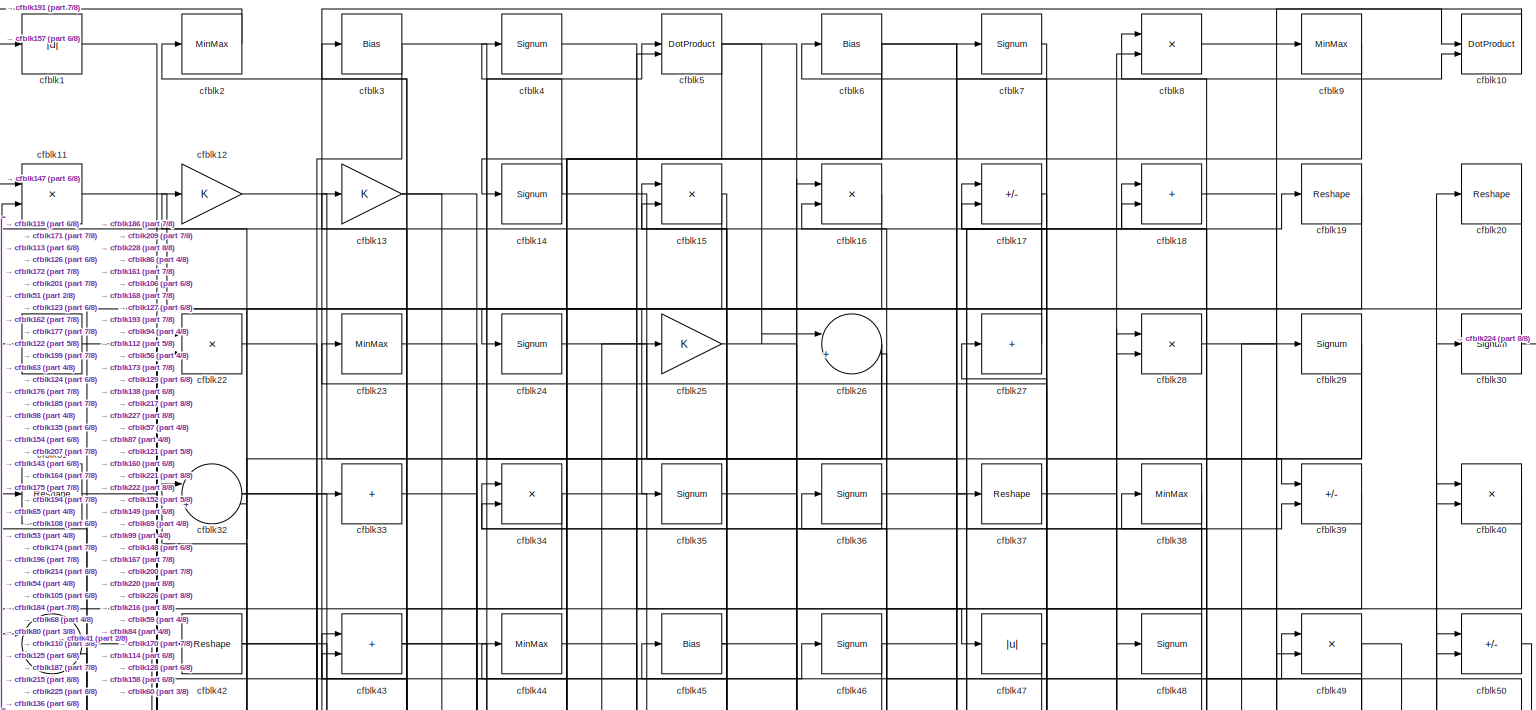
[diagram: root canvas - part 1/8, full width, top band]
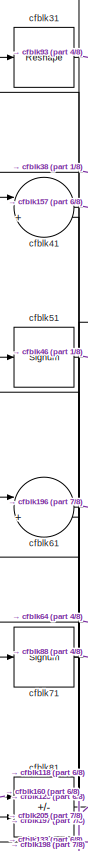
[diagram: root canvas - part 2/8, top left region]
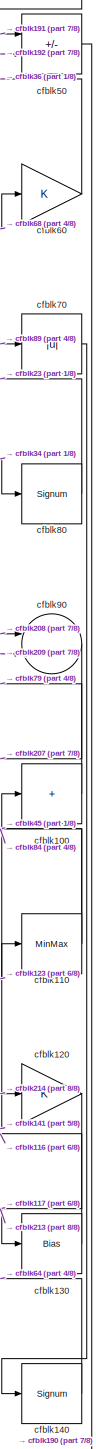
[diagram: root canvas - part 3/8, middle right region]
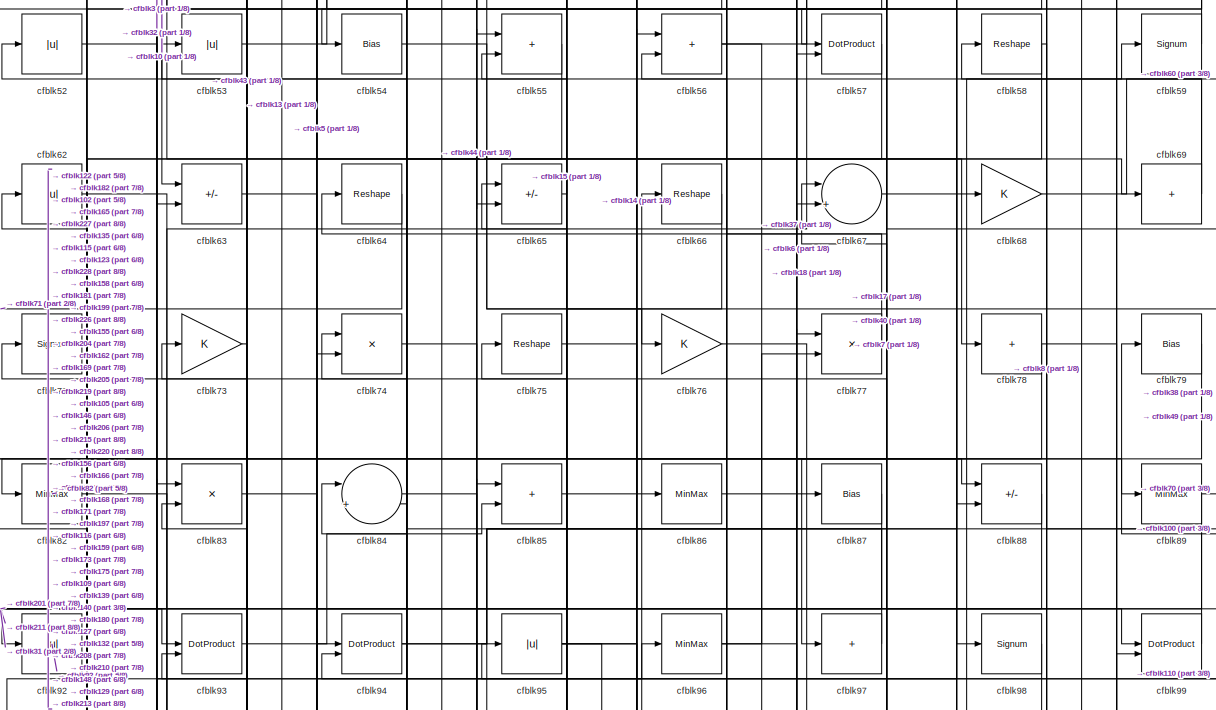
[diagram: root canvas - part 4/8, full width, top band]
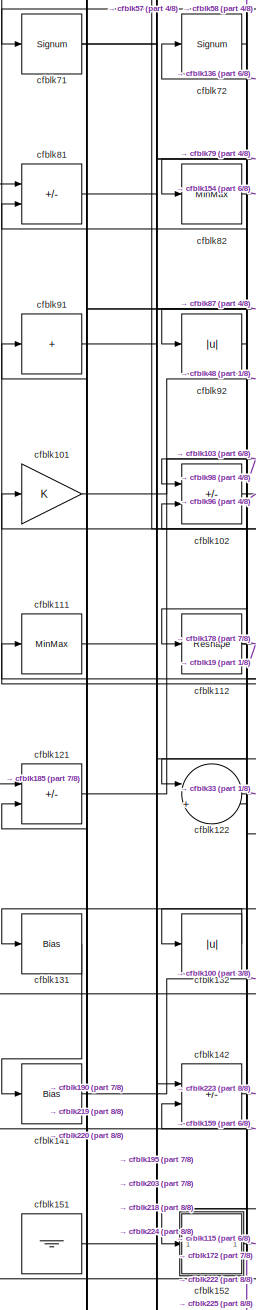
[diagram: root canvas - part 5/8, middle left region]
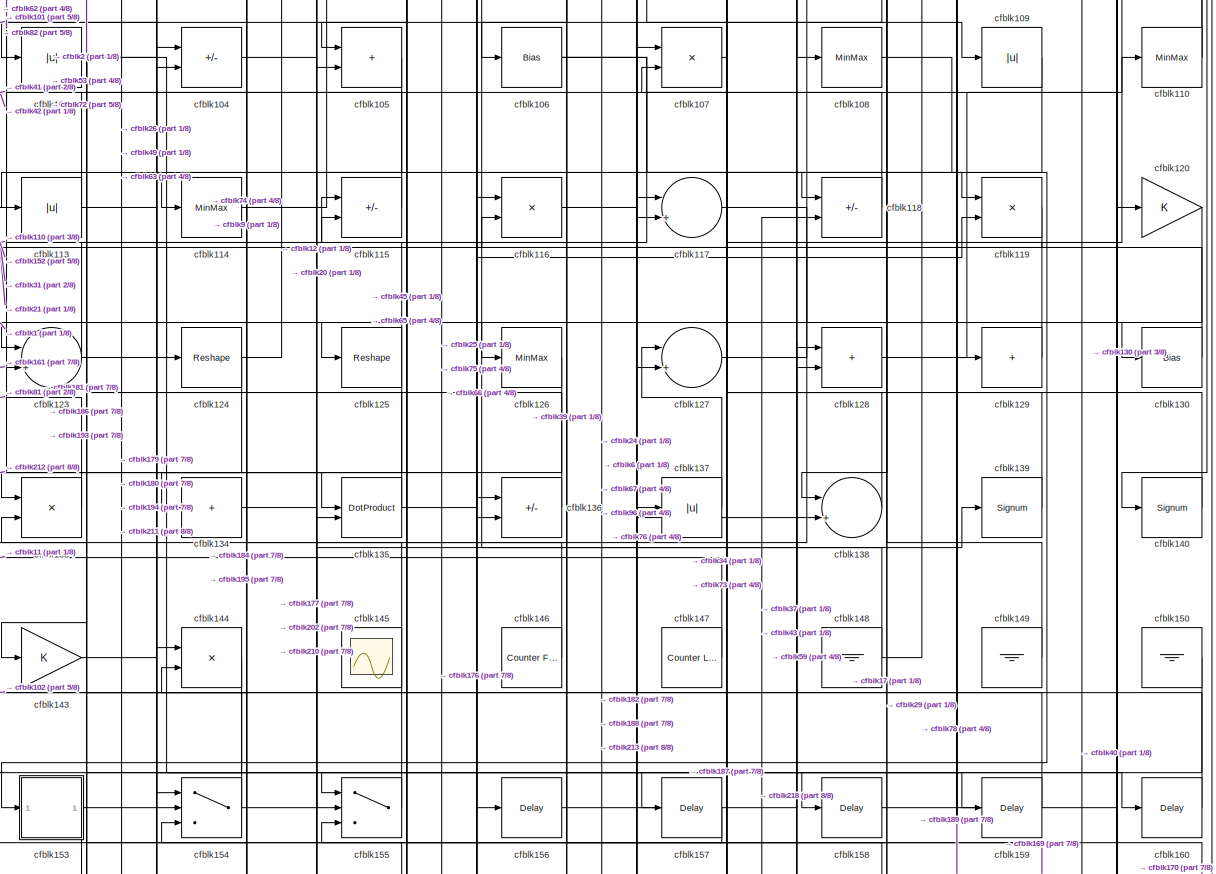
[diagram: root canvas - part 6/8, full width, middle band]
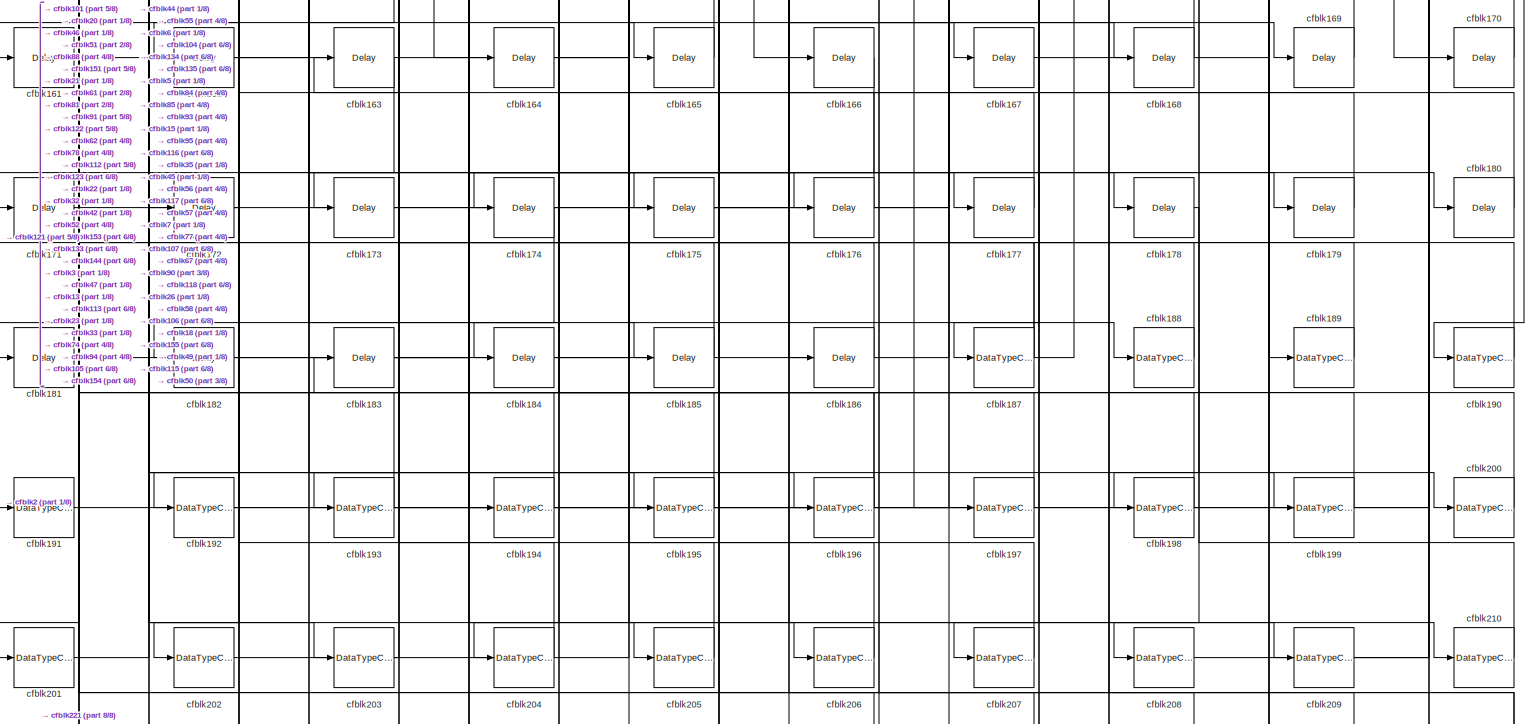
[diagram: root canvas - part 7/8, full width, bottom band]
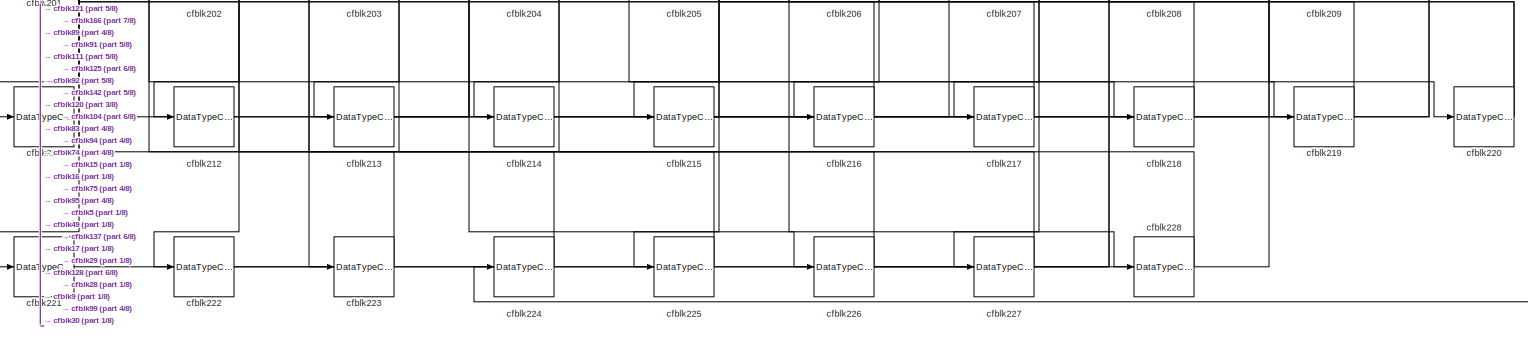
[diagram: root canvas - part 8/8, full width, bottom band]
MODEL slx_5a5e3901d874
KIND model
CONFIG AbsTol = auto
CONFIG EnableMultiTasking = off
CONFIG FixedStep = auto
CONFIG MaxStep = auto
CONFIG MinStep = auto
CONFIG RelTol = 1e-3
CONFIG SampleTimeConstraint = Unconstrained
CONFIG SolverName = VariableStepAuto
CONFIG StartTime = 0.0
CONFIG StopTime = 10.0
BLOCK [Abs] cfblk1
  SaturateOnIntegerOverflow = off
BLOCK [DotProduct] cfblk10
  OutDataTypeStr = Inherit: Inherit via internal rule
BLOCK [Sum] cfblk100
  IconShape = rectangular
  Inputs = +
BLOCK [Gain] cfblk101
BLOCK [Sum] cfblk102
  IconShape = rectangular
  Inputs = +-
BLOCK [Abs] cfblk103
  SaturateOnIntegerOverflow = off
BLOCK [Sum] cfblk104
  IconShape = rectangular
  Inputs = +-
BLOCK [Sum] cfblk105
  IconShape = rectangular
BLOCK [Bias] cfblk106
  Bias = 0.0
  SaturateOnIntegerOverflow = off
BLOCK [Product] cfblk107
  Inputs = */
  RndMeth = Zero
  SaturateOnIntegerOverflow = on
BLOCK [MinMax] cfblk108
BLOCK [Abs] cfblk109
  SaturateOnIntegerOverflow = off
BLOCK [Product] cfblk11
  Inputs = */
  RndMeth = Zero
  SaturateOnIntegerOverflow = on
BLOCK [MinMax] cfblk110
BLOCK [MinMax] cfblk111
BLOCK [Reshape] cfblk112
BLOCK [Abs] cfblk113
  SaturateOnIntegerOverflow = off
BLOCK [MinMax] cfblk114
BLOCK [Sum] cfblk115
  IconShape = rectangular
  Inputs = +-
BLOCK [Product] cfblk116
  Inputs = */
  RndMeth = Zero
  SaturateOnIntegerOverflow = on
BLOCK [Sum] cfblk117
  Inputs = |++
BLOCK [Sum] cfblk118
  IconShape = rectangular
  Inputs = +-
BLOCK [Product] cfblk119
  Inputs = */
  RndMeth = Zero
  SaturateOnIntegerOverflow = on
BLOCK [Gain] cfblk12
BLOCK [Gain] cfblk120
BLOCK [Sum] cfblk121
  IconShape = rectangular
  Inputs = +-
BLOCK [Sum] cfblk122
  Inputs = |++
BLOCK [Sum] cfblk123
  Inputs = |++
BLOCK [Reshape] cfblk124
BLOCK [Reshape] cfblk125
BLOCK [MinMax] cfblk126
BLOCK [Sum] cfblk127
  Inputs = |++
BLOCK [Sum] cfblk128
  IconShape = rectangular
BLOCK [Sum] cfblk129
  IconShape = rectangular
  Inputs = +
BLOCK [Gain] cfblk13
BLOCK [Bias] cfblk130
  Bias = 0.0
  SaturateOnIntegerOverflow = off
BLOCK [Bias] cfblk131
  Bias = 0.0
  SaturateOnIntegerOverflow = off
BLOCK [Abs] cfblk132
  SaturateOnIntegerOverflow = off
BLOCK [Product] cfblk133
  Inputs = */
  RndMeth = Zero
  SaturateOnIntegerOverflow = on
BLOCK [Sum] cfblk134
  IconShape = rectangular
  Inputs = +
BLOCK [DotProduct] cfblk135
  OutDataTypeStr = Inherit: Inherit via internal rule
BLOCK [Sum] cfblk136
  IconShape = rectangular
  Inputs = +-
BLOCK [Abs] cfblk137
  SaturateOnIntegerOverflow = off
BLOCK [Sum] cfblk138
  Inputs = |++
BLOCK [Signum] cfblk139
BLOCK [Signum] cfblk14
BLOCK [Signum] cfblk140
BLOCK [Bias] cfblk141
  Bias = 0.0
  SaturateOnIntegerOverflow = off
BLOCK [Sum] cfblk142
  IconShape = rectangular
  Inputs = +-
BLOCK [Gain] cfblk143
BLOCK [Product] cfblk144
  Inputs = */
  RndMeth = Zero
  SaturateOnIntegerOverflow = on
BLOCK [Scope] cfblk145
  Floating = on
  NumInputPorts = 1
  ScopeSpecificationString = Simulink.scopes.TimeScopeBlockCfg('CurrentConfiguration', extmgr.ConfigurationSet(extmgr.Configuration('Core','General UI',true,'FigureColor',[0.156862745098039 0.156862745098039 0.156862745098039]),extmgr.Configuration('Core','Source UI',true),extmgr.Configuration('Sources','WiredSimulink',true,'DataLoggingVariableName','ScopeData1','DataLoggingSaveFormat','StructureWithTime','DataLoggingLimitDat...<+2713ch>
BLOCK [Reference] cfblk146  REF=hdlsllib/Sources/Counter
Free-Running
  SourceBlock = hdlsllib/Sources/Counter\nFree-Running
  SourceType = Counter Free-Running
BLOCK [Reference] cfblk147  REF=hdlsllib/Sources/Counter
Limited
  SourceBlock = hdlsllib/Sources/Counter\nLimited
  SourceType = Counter Limited
BLOCK [Ground] cfblk148
BLOCK [Ground] cfblk149
BLOCK [Product] cfblk15
  Inputs = */
  RndMeth = Zero
  SaturateOnIntegerOverflow = on
BLOCK [Ground] cfblk150
BLOCK [Ground] cfblk151
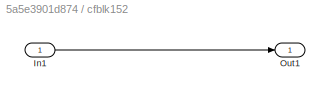
BLOCK [SubSystem] cfblk152
  LibrarySourceBlock = hdlsllib/Ports &\nSubsystems/Subsystem
BLOCK [Inport] cfblk152/In1
BLOCK [Outport] cfblk152/Out1
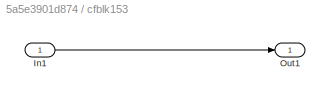
BLOCK [SubSystem] cfblk153
  LibrarySourceBlock = hdlsllib/Ports &\nSubsystems/Subsystem
BLOCK [Inport] cfblk153/In1
BLOCK [Outport] cfblk153/Out1
BLOCK [Switch] cfblk154
  InputSameDT = off
  SaturateOnIntegerOverflow = off
BLOCK [Switch] cfblk155
  InputSameDT = off
  SaturateOnIntegerOverflow = off
BLOCK [Delay] cfblk156
  InputPortMap = u0
  SampleTime = 1
BLOCK [Delay] cfblk157
  InputPortMap = u0
  SampleTime = 1
BLOCK [Delay] cfblk158
  InputPortMap = u0
  SampleTime = 1
BLOCK [Delay] cfblk159
  InputPortMap = u0
  SampleTime = 1
BLOCK [Product] cfblk16
  Inputs = */
  RndMeth = Zero
  SaturateOnIntegerOverflow = on
BLOCK [Delay] cfblk160
  InputPortMap = u0
  SampleTime = 1
BLOCK [Delay] cfblk161
  InputPortMap = u0
  SampleTime = 1
BLOCK [Delay] cfblk162
  InputPortMap = u0
  SampleTime = 1
BLOCK [Delay] cfblk163
  InputPortMap = u0
  SampleTime = 1
BLOCK [Delay] cfblk164
  InputPortMap = u0
  SampleTime = 1
BLOCK [Delay] cfblk165
  InputPortMap = u0
  SampleTime = 1
BLOCK [Delay] cfblk166
  InputPortMap = u0
  SampleTime = 1
BLOCK [Delay] cfblk167
  InputPortMap = u0
  SampleTime = 1
BLOCK [Delay] cfblk168
  InputPortMap = u0
  SampleTime = 1
BLOCK [Delay] cfblk169
  InputPortMap = u0
  SampleTime = 1
BLOCK [Sum] cfblk17
  IconShape = rectangular
  Inputs = +-
BLOCK [Delay] cfblk170
  InputPortMap = u0
  SampleTime = 1
BLOCK [Delay] cfblk171
  InputPortMap = u0
  SampleTime = 1
BLOCK [Delay] cfblk172
  InputPortMap = u0
  SampleTime = 1
BLOCK [Delay] cfblk173
  InputPortMap = u0
  SampleTime = 1
BLOCK [Delay] cfblk174
  InputPortMap = u0
  SampleTime = 1
BLOCK [Delay] cfblk175
  InputPortMap = u0
  SampleTime = 1
BLOCK [Delay] cfblk176
  InputPortMap = u0
  SampleTime = 1
BLOCK [Delay] cfblk177
  InputPortMap = u0
  SampleTime = 1
BLOCK [Delay] cfblk178
  InputPortMap = u0
  SampleTime = 1
BLOCK [Delay] cfblk179
  InputPortMap = u0
  SampleTime = 1
BLOCK [Sum] cfblk18
  IconShape = rectangular
BLOCK [Delay] cfblk180
  InputPortMap = u0
  SampleTime = 1
BLOCK [Delay] cfblk181
  InputPortMap = u0
  SampleTime = 1
BLOCK [Delay] cfblk182
  InputPortMap = u0
  SampleTime = 1
BLOCK [Delay] cfblk183
  InputPortMap = u0
  SampleTime = 1
BLOCK [Delay] cfblk184
  InputPortMap = u0
  SampleTime = 1
BLOCK [Delay] cfblk185
  InputPortMap = u0
  SampleTime = 1
BLOCK [Delay] cfblk186
  InputPortMap = u0
  SampleTime = 1
BLOCK [DataTypeConversion] cfblk187
  RndMeth = Floor
  SaturateOnIntegerOverflow = off
BLOCK [DataTypeConversion] cfblk188
  OutDataTypeStr = uint8
  RndMeth = Floor
  SaturateOnIntegerOverflow = off
BLOCK [DataTypeConversion] cfblk189
  OutDataTypeStr = uint8
  RndMeth = Floor
  SaturateOnIntegerOverflow = off
BLOCK [Reshape] cfblk19
BLOCK [DataTypeConversion] cfblk190
  OutDataTypeStr = uint8
  RndMeth = Floor
  SaturateOnIntegerOverflow = off
BLOCK [DataTypeConversion] cfblk191
  OutDataTypeStr = uint8
  RndMeth = Floor
  SaturateOnIntegerOverflow = off
BLOCK [DataTypeConversion] cfblk192
  OutDataTypeStr = uint8
  RndMeth = Floor
  SaturateOnIntegerOverflow = off
BLOCK [DataTypeConversion] cfblk193
  RndMeth = Floor
  SaturateOnIntegerOverflow = off
BLOCK [DataTypeConversion] cfblk194
  OutDataTypeStr = uint8
  RndMeth = Floor
  SaturateOnIntegerOverflow = off
BLOCK [DataTypeConversion] cfblk195
  OutDataTypeStr = uint8
  RndMeth = Floor
  SaturateOnIntegerOverflow = off
BLOCK [DataTypeConversion] cfblk196
  RndMeth = Floor
  SaturateOnIntegerOverflow = off
BLOCK [DataTypeConversion] cfblk197
  OutDataTypeStr = uint8
  RndMeth = Floor
  SaturateOnIntegerOverflow = off
BLOCK [DataTypeConversion] cfblk198
  OutDataTypeStr = uint8
  RndMeth = Floor
  SaturateOnIntegerOverflow = off
BLOCK [DataTypeConversion] cfblk199
  OutDataTypeStr = uint8
  RndMeth = Floor
  SaturateOnIntegerOverflow = off
BLOCK [MinMax] cfblk2
BLOCK [Reshape] cfblk20
BLOCK [DataTypeConversion] cfblk200
  OutDataTypeStr = uint8
  RndMeth = Floor
  SaturateOnIntegerOverflow = off
BLOCK [DataTypeConversion] cfblk201
  OutDataTypeStr = uint8
  RndMeth = Floor
  SaturateOnIntegerOverflow = off
BLOCK [DataTypeConversion] cfblk202
  OutDataTypeStr = uint8
  RndMeth = Floor
  SaturateOnIntegerOverflow = off
BLOCK [DataTypeConversion] cfblk203
  OutDataTypeStr = uint8
  RndMeth = Floor
  SaturateOnIntegerOverflow = off
BLOCK [DataTypeConversion] cfblk204
  OutDataTypeStr = uint8
  RndMeth = Floor
  SaturateOnIntegerOverflow = off
BLOCK [DataTypeConversion] cfblk205
  OutDataTypeStr = uint8
  RndMeth = Floor
  SaturateOnIntegerOverflow = off
BLOCK [DataTypeConversion] cfblk206
  OutDataTypeStr = uint8
  RndMeth = Floor
  SaturateOnIntegerOverflow = off
BLOCK [DataTypeConversion] cfblk207
  OutDataTypeStr = uint8
  RndMeth = Floor
  SaturateOnIntegerOverflow = off
BLOCK [DataTypeConversion] cfblk208
  OutDataTypeStr = uint8
  RndMeth = Floor
  SaturateOnIntegerOverflow = off
BLOCK [DataTypeConversion] cfblk209
  OutDataTypeStr = uint8
  RndMeth = Floor
  SaturateOnIntegerOverflow = off
BLOCK [Sum] cfblk21
  IconShape = rectangular
  Inputs = +
BLOCK [DataTypeConversion] cfblk210
  OutDataTypeStr = uint8
  RndMeth = Floor
  SaturateOnIntegerOverflow = off
BLOCK [DataTypeConversion] cfblk211
  OutDataTypeStr = uint8
  RndMeth = Floor
  SaturateOnIntegerOverflow = off
BLOCK [DataTypeConversion] cfblk212
  OutDataTypeStr = uint8
  RndMeth = Floor
  SaturateOnIntegerOverflow = off
BLOCK [DataTypeConversion] cfblk213
  RndMeth = Floor
  SaturateOnIntegerOverflow = off
BLOCK [DataTypeConversion] cfblk214
  OutDataTypeStr = uint8
  RndMeth = Floor
  SaturateOnIntegerOverflow = off
BLOCK [DataTypeConversion] cfblk215
  RndMeth = Floor
  SaturateOnIntegerOverflow = off
BLOCK [DataTypeConversion] cfblk216
  OutDataTypeStr = uint8
  RndMeth = Floor
  SaturateOnIntegerOverflow = off
BLOCK [DataTypeConversion] cfblk217
  OutDataTypeStr = uint8
  RndMeth = Floor
  SaturateOnIntegerOverflow = off
BLOCK [DataTypeConversion] cfblk218
  OutDataTypeStr = uint8
  RndMeth = Floor
  SaturateOnIntegerOverflow = off
BLOCK [DataTypeConversion] cfblk219
  OutDataTypeStr = uint8
  RndMeth = Floor
  SaturateOnIntegerOverflow = off
BLOCK [Product] cfblk22
  Inputs = */
  RndMeth = Zero
  SaturateOnIntegerOverflow = on
BLOCK [DataTypeConversion] cfblk220
  RndMeth = Floor
  SaturateOnIntegerOverflow = off
BLOCK [DataTypeConversion] cfblk221
  OutDataTypeStr = uint8
  RndMeth = Floor
  SaturateOnIntegerOverflow = off
BLOCK [DataTypeConversion] cfblk222
  OutDataTypeStr = uint8
  RndMeth = Floor
  SaturateOnIntegerOverflow = off
BLOCK [DataTypeConversion] cfblk223
  OutDataTypeStr = uint8
  RndMeth = Floor
  SaturateOnIntegerOverflow = off
BLOCK [DataTypeConversion] cfblk224
  OutDataTypeStr = uint8
  RndMeth = Floor
  SaturateOnIntegerOverflow = off
BLOCK [DataTypeConversion] cfblk225
  OutDataTypeStr = uint8
  RndMeth = Floor
  SaturateOnIntegerOverflow = off
BLOCK [DataTypeConversion] cfblk226
  RndMeth = Floor
  SaturateOnIntegerOverflow = off
BLOCK [DataTypeConversion] cfblk227
  OutDataTypeStr = uint8
  RndMeth = Floor
  SaturateOnIntegerOverflow = off
BLOCK [DataTypeConversion] cfblk228
  OutDataTypeStr = uint8
  RndMeth = Floor
  SaturateOnIntegerOverflow = off
BLOCK [MinMax] cfblk23
BLOCK [Signum] cfblk24
BLOCK [Gain] cfblk25
BLOCK [Sum] cfblk26
  Inputs = |++
BLOCK [Sum] cfblk27
  IconShape = rectangular
  Inputs = +
BLOCK [Product] cfblk28
  Inputs = */
  RndMeth = Zero
  SaturateOnIntegerOverflow = on
BLOCK [Signum] cfblk29
BLOCK [Bias] cfblk3
  Bias = 0.0
  SaturateOnIntegerOverflow = off
BLOCK [Signum] cfblk30
BLOCK [Reshape] cfblk31
BLOCK [Sum] cfblk32
  Inputs = |++
BLOCK [Sum] cfblk33
  IconShape = rectangular
  Inputs = +
BLOCK [Product] cfblk34
  Inputs = */
  RndMeth = Zero
  SaturateOnIntegerOverflow = on
BLOCK [Signum] cfblk35
BLOCK [Signum] cfblk36
BLOCK [Reshape] cfblk37
BLOCK [MinMax] cfblk38
BLOCK [Sum] cfblk39
  IconShape = rectangular
  Inputs = +-
BLOCK [Signum] cfblk4
BLOCK [Product] cfblk40
  Inputs = */
  RndMeth = Zero
  SaturateOnIntegerOverflow = on
BLOCK [Sum] cfblk41
  Inputs = |++
BLOCK [Reshape] cfblk42
BLOCK [Sum] cfblk43
  IconShape = rectangular
BLOCK [MinMax] cfblk44
BLOCK [Bias] cfblk45
  Bias = 0.0
  SaturateOnIntegerOverflow = off
BLOCK [Signum] cfblk46
BLOCK [Abs] cfblk47
  SaturateOnIntegerOverflow = off
BLOCK [Signum] cfblk48
BLOCK [Product] cfblk49
  Inputs = */
  RndMeth = Zero
  SaturateOnIntegerOverflow = on
BLOCK [DotProduct] cfblk5
  OutDataTypeStr = Inherit: Inherit via internal rule
BLOCK [Sum] cfblk50
  IconShape = rectangular
  Inputs = +-
BLOCK [Signum] cfblk51
BLOCK [Abs] cfblk52
  SaturateOnIntegerOverflow = off
BLOCK [Abs] cfblk53
  SaturateOnIntegerOverflow = off
BLOCK [Bias] cfblk54
  Bias = 0.0
  SaturateOnIntegerOverflow = off
BLOCK [Sum] cfblk55
  IconShape = rectangular
BLOCK [Sum] cfblk56
  IconShape = rectangular
BLOCK [DotProduct] cfblk57
  OutDataTypeStr = Inherit: Inherit via internal rule
BLOCK [Reshape] cfblk58
BLOCK [Signum] cfblk59
BLOCK [Bias] cfblk6
  Bias = 0.0
  SaturateOnIntegerOverflow = off
BLOCK [Gain] cfblk60
BLOCK [Sum] cfblk61
  Inputs = |++
BLOCK [Abs] cfblk62
  SaturateOnIntegerOverflow = off
BLOCK [Sum] cfblk63
  IconShape = rectangular
  Inputs = +-
BLOCK [Reshape] cfblk64
BLOCK [Sum] cfblk65
  IconShape = rectangular
  Inputs = +-
BLOCK [Reshape] cfblk66
BLOCK [Sum] cfblk67
  Inputs = |++
BLOCK [Gain] cfblk68
BLOCK [Sum] cfblk69
  IconShape = rectangular
  Inputs = +
BLOCK [Signum] cfblk7
BLOCK [Abs] cfblk70
  SaturateOnIntegerOverflow = off
BLOCK [Signum] cfblk71
BLOCK [Signum] cfblk72
BLOCK [Gain] cfblk73
BLOCK [Product] cfblk74
  Inputs = */
  RndMeth = Zero
  SaturateOnIntegerOverflow = on
BLOCK [Reshape] cfblk75
BLOCK [Gain] cfblk76
BLOCK [Product] cfblk77
  Inputs = */
  RndMeth = Zero
  SaturateOnIntegerOverflow = on
BLOCK [Sum] cfblk78
  IconShape = rectangular
  Inputs = +
BLOCK [Bias] cfblk79
  Bias = 0.0
  SaturateOnIntegerOverflow = off
BLOCK [Product] cfblk8
  Inputs = */
  RndMeth = Zero
  SaturateOnIntegerOverflow = on
BLOCK [Signum] cfblk80
BLOCK [Sum] cfblk81
  IconShape = rectangular
  Inputs = +-
BLOCK [MinMax] cfblk82
BLOCK [Product] cfblk83
  Inputs = */
  RndMeth = Zero
  SaturateOnIntegerOverflow = on
BLOCK [Sum] cfblk84
  Inputs = |++
BLOCK [Sum] cfblk85
  IconShape = rectangular
BLOCK [MinMax] cfblk86
BLOCK [Bias] cfblk87
  Bias = 0.0
  SaturateOnIntegerOverflow = off
BLOCK [Sum] cfblk88
  IconShape = rectangular
  Inputs = +-
BLOCK [MinMax] cfblk89
BLOCK [MinMax] cfblk9
BLOCK [Sum] cfblk90
  Inputs = |++
BLOCK [Sum] cfblk91
  IconShape = rectangular
  Inputs = +
BLOCK [Abs] cfblk92
  SaturateOnIntegerOverflow = off
BLOCK [DotProduct] cfblk93
  OutDataTypeStr = Inherit: Inherit via internal rule
BLOCK [DotProduct] cfblk94
  OutDataTypeStr = Inherit: Inherit via internal rule
BLOCK [Abs] cfblk95
  SaturateOnIntegerOverflow = off
BLOCK [MinMax] cfblk96
BLOCK [Sum] cfblk97
  IconShape = rectangular
  Inputs = +
BLOCK [Signum] cfblk98
BLOCK [DotProduct] cfblk99
  OutDataTypeStr = Inherit: Inherit via internal rule
LINE cfblk100:1 -> cfblk79:1
LINE cfblk101:1 -> cfblk103:1
LINE cfblk102:1 -> cfblk96:1
NET cfblk103:1 -> cfblk136:2, cfblk155:2
LINE cfblk104:1 -> cfblk210:1
LINE cfblk105:1 -> cfblk184:1
NET cfblk106:1 -> cfblk117:2, cfblk118:1, cfblk189:1
LINE cfblk107:1 -> cfblk187:1
LINE cfblk108:1 -> cfblk153:1
LINE cfblk109:1 -> cfblk143:1
LINE cfblk10:1 -> cfblk63:1
NET cfblk110:1 -> cfblk45:1, cfblk84:1
LINE cfblk111:1 -> cfblk218:1
NET cfblk112:1 -> cfblk178:1, cfblk19:1
NET cfblk113:1 -> cfblk179:1, cfblk42:1
NET cfblk114:1 -> cfblk119:1, cfblk20:1
LINE cfblk115:1 -> cfblk53:1
LINE cfblk116:1 -> cfblk67:2
LINE cfblk117:1 -> cfblk130:1
LINE cfblk118:1 -> cfblk41:2
LINE cfblk119:1 -> cfblk21:1
LINE cfblk11:1 -> cfblk35:1
LINE cfblk120:1 -> cfblk213:1
LINE cfblk121:1 -> cfblk48:1
LINE cfblk122:1 -> cfblk33:1
NET cfblk123:1 -> cfblk110:1, cfblk12:1
NET cfblk124:1 -> cfblk134:1, cfblk25:1
NET cfblk125:1 -> cfblk212:1, cfblk31:1
LINE cfblk126:1 -> cfblk133:1
LINE cfblk127:1 -> cfblk59:1
LINE cfblk128:1 -> cfblk40:2
LINE cfblk129:1 -> cfblk6:1
LINE cfblk12:1 -> cfblk105:2
LINE cfblk130:1 -> cfblk116:2
LINE cfblk131:1 -> cfblk141:1
LINE cfblk132:1 -> cfblk131:1
LINE cfblk133:1 -> cfblk81:2
LINE cfblk134:1 -> cfblk177:1
NET cfblk135:1 -> cfblk119:2, cfblk2:1
LINE cfblk136:1 -> cfblk72:1
LINE cfblk137:1 -> cfblk127:1
LINE cfblk138:1 -> cfblk34:1
LINE cfblk139:1 -> cfblk73:1
NET cfblk13:1 -> cfblk164:1, cfblk65:2
LINE cfblk140:1 -> cfblk64:1
LINE cfblk141:1 -> cfblk100:1
LINE cfblk142:1 -> cfblk223:1
LINE cfblk143:1 -> cfblk49:1
LINE cfblk144:1 -> cfblk193:1
LINE cfblk146:1 -> cfblk65:1
LINE cfblk147:1 -> cfblk11:1
NET cfblk148:1 -> cfblk29:1, cfblk66:1
LINE cfblk149:1 -> cfblk17:2
NET cfblk14:1 -> cfblk4:1, cfblk86:1
LINE cfblk150:1 -> cfblk155:1
LINE cfblk151:1 -> cfblk195:1
LINE cfblk152/In1:1 -> cfblk152/Out1:1
LINE cfblk152:1 -> cfblk115:1
LINE cfblk153/In1:1 -> cfblk153/Out1:1
NET cfblk153:1 -> cfblk180:1, cfblk181:1
NET cfblk154:1 -> cfblk139:1, cfblk43:1
LINE cfblk155:1 -> cfblk74:1
LINE cfblk156:1 -> cfblk128:2
LINE cfblk157:1 -> cfblk1:1
LINE cfblk158:1 -> cfblk40:1
LINE cfblk159:1 -> cfblk102:2
NET cfblk15:1 -> cfblk162:1, cfblk225:1
LINE cfblk160:1 -> cfblk81:1
LINE cfblk161:1 -> cfblk123:2
LINE cfblk162:1 -> cfblk85:1
LINE cfblk163:1 -> cfblk202:1
LINE cfblk164:1 -> cfblk188:1
LINE cfblk165:1 -> cfblk93:2
LINE cfblk166:1 -> cfblk221:1
LINE cfblk167:1 -> cfblk49:2
LINE cfblk168:1 -> cfblk26:2
LINE cfblk169:1 -> cfblk155:3
LINE cfblk16:1 -> cfblk215:1
LINE cfblk170:1 -> cfblk115:2
LINE cfblk171:1 -> cfblk56:1
LINE cfblk172:1 -> cfblk122:2
LINE cfblk173:1 -> cfblk57:2
LINE cfblk174:1 -> cfblk192:1
LINE cfblk175:1 -> cfblk77:1
LINE cfblk176:1 -> cfblk116:1
LINE cfblk177:1 -> cfblk32:1
LINE cfblk178:1 -> cfblk198:1
LINE cfblk179:1 -> cfblk154:3
NET cfblk17:1 -> cfblk227:1, cfblk54:1
LINE cfblk180:1 -> cfblk67:1
LINE cfblk181:1 -> cfblk74:2
LINE cfblk182:1 -> cfblk117:1
LINE cfblk183:1 -> cfblk206:1
LINE cfblk184:1 -> cfblk5:2
LINE cfblk185:1 -> cfblk121:1
LINE cfblk186:1 -> cfblk133:2
NET cfblk187:1 -> cfblk118:2, cfblk13:1, cfblk15:2
LINE cfblk188:1 -> cfblk107:1
LINE cfblk189:1 -> cfblk107:2
LINE cfblk18:1 -> cfblk200:1
LINE cfblk190:1 -> cfblk101:1
LINE cfblk191:1 -> cfblk50:1
LINE cfblk192:1 -> cfblk50:2
NET cfblk193:1 -> cfblk183:1, cfblk7:1
LINE cfblk194:1 -> cfblk144:1
LINE cfblk195:1 -> cfblk144:2
NET cfblk196:1 -> cfblk44:1, cfblk51:1
LINE cfblk197:1 -> cfblk61:1
LINE cfblk198:1 -> cfblk61:2
LINE cfblk199:1 -> cfblk94:1
LINE cfblk19:1 -> cfblk24:1
LINE cfblk1:1 -> cfblk126:1
LINE cfblk200:1 -> cfblk22:1
LINE cfblk201:1 -> cfblk22:2
LINE cfblk202:1 -> cfblk135:2
LINE cfblk203:1 -> cfblk163:1
LINE cfblk204:1 -> cfblk62:1
LINE cfblk205:1 -> cfblk55:1
LINE cfblk206:1 -> cfblk55:2
LINE cfblk207:1 -> cfblk3:1
LINE cfblk208:1 -> cfblk90:1
LINE cfblk209:1 -> cfblk90:2
LINE cfblk20:1 -> cfblk171:1
LINE cfblk210:1 -> cfblk58:1
LINE cfblk211:1 -> cfblk104:1
LINE cfblk212:1 -> cfblk104:2
NET cfblk213:1 -> cfblk137:1, cfblk99:2
LINE cfblk214:1 -> cfblk120:1
NET cfblk215:1 -> cfblk30:1, cfblk95:1
LINE cfblk216:1 -> cfblk16:1
LINE cfblk217:1 -> cfblk16:2
LINE cfblk218:1 -> cfblk128:1
LINE cfblk219:1 -> cfblk111:1
LINE cfblk21:1 -> cfblk172:1
NET cfblk220:1 -> cfblk121:2, cfblk75:1
LINE cfblk221:1 -> cfblk28:1
LINE cfblk222:1 -> cfblk28:2
LINE cfblk223:1 -> cfblk91:1
LINE cfblk224:1 -> cfblk142:1
LINE cfblk225:1 -> cfblk142:2
NET cfblk226:1 -> cfblk94:2, cfblk9:1
LINE cfblk227:1 -> cfblk83:1
LINE cfblk228:1 -> cfblk83:2
LINE cfblk22:1 -> cfblk199:1
LINE cfblk23:1 -> cfblk175:1
LINE cfblk24:1 -> cfblk127:2
LINE cfblk25:1 -> cfblk136:1
NET cfblk26:1 -> cfblk154:2, cfblk32:2
LINE cfblk27:1 -> cfblk11:2
LINE cfblk28:1 -> cfblk220:1
NET cfblk29:1 -> cfblk138:1, cfblk217:1
LINE cfblk2:1 -> cfblk191:1
LINE cfblk30:1 -> cfblk224:1
LINE cfblk31:1 -> cfblk93:1
NET cfblk32:1 -> cfblk185:1, cfblk98:1
LINE cfblk33:1 -> cfblk194:1
NET cfblk34:1 -> cfblk113:1, cfblk80:1
LINE cfblk35:1 -> cfblk186:1
NET cfblk36:1 -> cfblk34:2, cfblk39:2
LINE cfblk37:1 -> cfblk160:1
LINE cfblk38:1 -> cfblk41:1
LINE cfblk39:1 -> cfblk106:1
NET cfblk3:1 -> cfblk39:1, cfblk63:2
LINE cfblk40:1 -> cfblk87:1
LINE cfblk41:1 -> cfblk157:1
NET cfblk42:1 -> cfblk124:1, cfblk176:1
NET cfblk43:1 -> cfblk108:1, cfblk99:1
LINE cfblk44:1 -> cfblk68:1
NET cfblk45:1 -> cfblk125:1, cfblk209:1
NET cfblk46:1 -> cfblk10:2, cfblk161:1
NET cfblk47:1 -> cfblk173:1, cfblk17:1
NET cfblk48:1 -> cfblk152:1, cfblk27:1
NET cfblk49:1 -> cfblk170:1, cfblk216:1, cfblk84:2
LINE cfblk4:1 -> cfblk47:1
LINE cfblk50:1 -> cfblk190:1
LINE cfblk51:1 -> cfblk46:1
LINE cfblk52:1 -> cfblk165:1
LINE cfblk53:1 -> cfblk5:1
LINE cfblk54:1 -> cfblk76:1
LINE cfblk55:1 -> cfblk204:1
NET cfblk56:1 -> cfblk18:1, cfblk197:1
LINE cfblk57:1 -> cfblk102:1
NET cfblk58:1 -> cfblk122:1, cfblk208:1
LINE cfblk59:1 -> cfblk38:1
NET cfblk5:1 -> cfblk214:1, cfblk228:1, cfblk26:1
LINE cfblk60:1 -> cfblk36:1
LINE cfblk61:1 -> cfblk196:1
LINE cfblk62:1 -> cfblk135:1
LINE cfblk63:1 -> cfblk158:1
LINE cfblk64:1 -> cfblk71:1
LINE cfblk65:1 -> cfblk15:1
LINE cfblk66:1 -> cfblk105:1
LINE cfblk67:1 -> cfblk78:1
LINE cfblk68:1 -> cfblk60:1
NET cfblk69:1 -> cfblk18:2, cfblk43:2
NET cfblk6:1 -> cfblk138:2, cfblk14:1, cfblk174:1, cfblk69:1
LINE cfblk70:1 -> cfblk140:1
NET cfblk71:1 -> cfblk88:1, cfblk88:2
LINE cfblk72:1 -> cfblk112:1
LINE cfblk73:1 -> cfblk123:1
LINE cfblk74:1 -> cfblk219:1
LINE cfblk75:1 -> cfblk156:1
LINE cfblk76:1 -> cfblk109:1
LINE cfblk77:1 -> cfblk56:2
NET cfblk78:1 -> cfblk129:1, cfblk182:1
LINE cfblk79:1 -> cfblk82:1
LINE cfblk7:1 -> cfblk57:1
LINE cfblk80:1 -> cfblk23:1
LINE cfblk81:1 -> cfblk205:1
LINE cfblk82:1 -> cfblk154:1
LINE cfblk83:1 -> cfblk226:1
LINE cfblk84:1 -> cfblk169:1
LINE cfblk85:1 -> cfblk89:1
LINE cfblk86:1 -> cfblk97:1
LINE cfblk87:1 -> cfblk92:1
LINE cfblk88:1 -> cfblk201:1
NET cfblk89:1 -> cfblk211:1, cfblk70:1
LINE cfblk8:1 -> cfblk10:1
LINE cfblk90:1 -> cfblk207:1
LINE cfblk91:1 -> cfblk203:1
LINE cfblk92:1 -> cfblk222:1
LINE cfblk93:1 -> cfblk85:2
NET cfblk94:1 -> cfblk37:1, cfblk8:2
NET cfblk95:1 -> cfblk166:1, cfblk167:1, cfblk168:1
NET cfblk96:1 -> cfblk159:1, cfblk77:2
LINE cfblk97:1 -> cfblk52:1
LINE cfblk98:1 -> cfblk132:1
LINE cfblk99:1 -> cfblk8:1
LINE cfblk9:1 -> cfblk114:1
note: NET lines group one-source signal fan-out (src -> all destinations, sorted); 1:1 wires keep LINE
